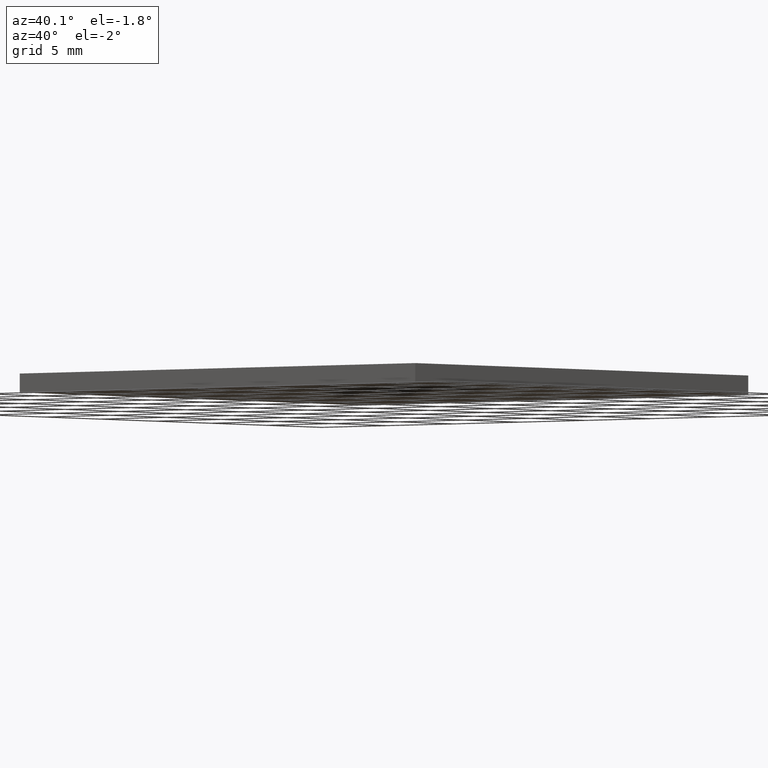
[diagram: clean part render]
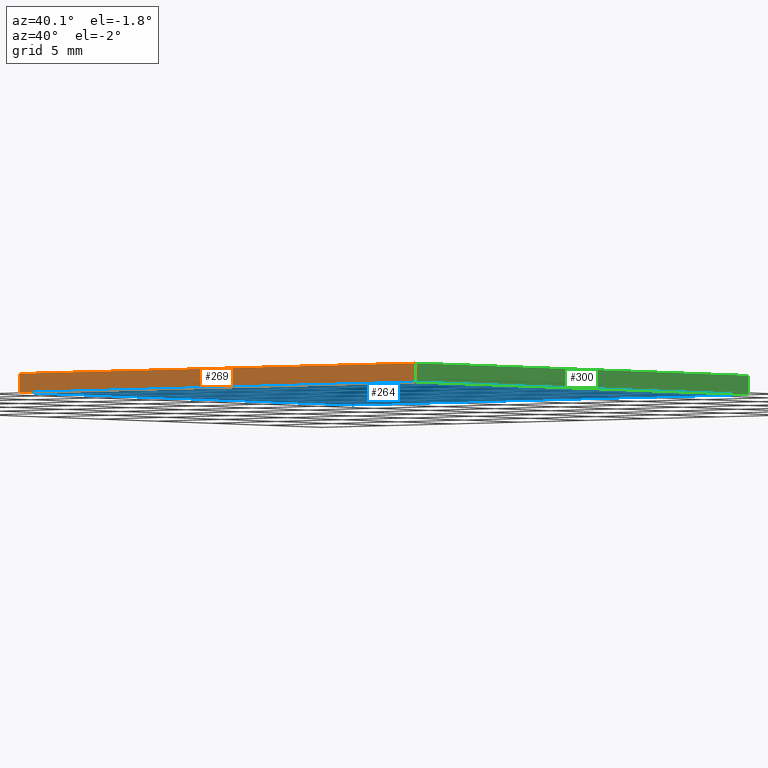
[diagram: same view with three faces highlighted in distinct colors, each labeled with its STEP entity id]
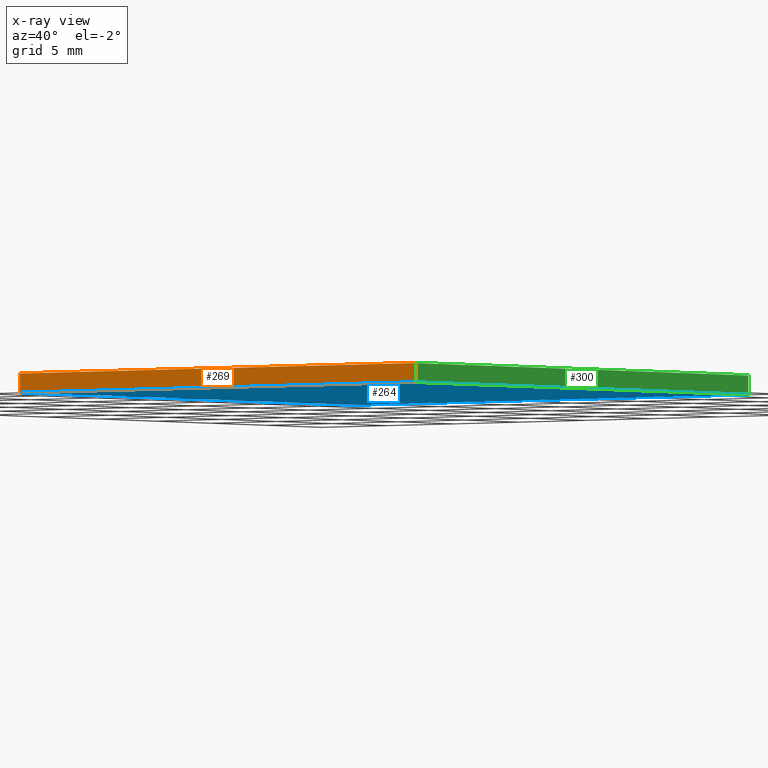
[diagram: x-ray of the same camera — body ghosted, the three highlighted faces saturated]
A machine part, auxiliary view with three faces highlighted in distinct colors.
The next image is the same camera in x-ray (body ghosted, the three faces saturated) — at least one of them is partly hidden behind the body in this view.
Their STEP definitions:

[orange] entity #269 — the highlighted planar face has unit normal (0, 1, 0).
#20 = VECTOR ( 'NONE', #48, 1000.000000000000000 ) ;
#26 = LINE ( 'NONE', #170, #261 ) ;
#43 = DIRECTION ( 'NONE',  ( 0.0000000000000000000, 1.000000000000000000, 0.0000000000000000000 ) ) ;
#48 = DIRECTION ( 'NONE',  ( 1.000000000000000000, 0.0000000000000000000, 0.0000000000000000000 ) ) ;
#50 = CARTESIAN_POINT ( 'NONE',  ( 15.00000000000000200, -14.99999999999999800, 1.100000000000000100 ) ) ;
#55 = AXIS2_PLACEMENT_3D ( 'NONE', #179, #43, #285 ) ;
#64 = ORIENTED_EDGE ( 'NONE', *, *, #255, .F. ) ;
#75 = DIRECTION ( 'NONE',  ( 1.000000000000000000, 0.0000000000000000000, 0.0000000000000000000 ) ) ;
#83 = LINE ( 'NONE', #203, #20 ) ;
#96 = PLANE ( 'NONE',  #55 ) ;
#97 = EDGE_CURVE ( 'NONE', #198, #248, #26, .T. ) ;
#100 = LINE ( 'NONE', #314, #145 ) ;
#104 = ORIENTED_EDGE ( 'NONE', *, *, #97, .T. ) ;
#112 = EDGE_CURVE ( 'NONE', #266, #156, #271, .T. ) ;
#113 = CARTESIAN_POINT ( 'NONE',  ( 15.00000000000000200, -14.99999999999999800, 0.0000000000000000000 ) ) ;
#114 = ORIENTED_EDGE ( 'NONE', *, *, #273, .T. ) ;
#145 = VECTOR ( 'NONE', #75, 1000.000000000000000 ) ;
#149 = ORIENTED_EDGE ( 'NONE', *, *, #112, .F. ) ;
#156 = VERTEX_POINT ( 'NONE', #113 ) ;
#166 = FACE_OUTER_BOUND ( 'NONE', #292, .T. ) ;
#170 = CARTESIAN_POINT ( 'NONE',  ( -14.99999999999999800, -14.99999999999999800, 1.100000000000000100 ) ) ;
#174 = DIRECTION ( 'NONE',  ( -0.0000000000000000000, -0.0000000000000000000, -1.000000000000000000 ) ) ;
#176 = CARTESIAN_POINT ( 'NONE',  ( -14.99999999999999800, -14.99999999999999800, 0.0000000000000000000 ) ) ;
#179 = CARTESIAN_POINT ( 'NONE',  ( -14.99999999999999800, -14.99999999999999800, 1.100000000000000100 ) ) ;
#198 = VERTEX_POINT ( 'NONE', #226 ) ;
#203 = CARTESIAN_POINT ( 'NONE',  ( -14.99999999999999800, -14.99999999999999800, 1.100000000000000100 ) ) ;
#226 = CARTESIAN_POINT ( 'NONE',  ( -14.99999999999999800, -14.99999999999999800, 1.100000000000000100 ) ) ;
#248 = VERTEX_POINT ( 'NONE', #176 ) ;
#249 = DIRECTION ( 'NONE',  ( -0.0000000000000000000, -0.0000000000000000000, -1.000000000000000000 ) ) ;
#255 = EDGE_CURVE ( 'NONE', #198, #266, #83, .T. ) ;
#261 = VECTOR ( 'NONE', #249, 1000.000000000000000 ) ;
#266 = VERTEX_POINT ( 'NONE', #50 ) ;
#269 = ADVANCED_FACE ( 'NONE', ( #166 ), #96, .F. ) ;
#271 = LINE ( 'NONE', #306, #282 ) ;
#273 = EDGE_CURVE ( 'NONE', #248, #156, #100, .T. ) ;
#282 = VECTOR ( 'NONE', #174, 1000.000000000000000 ) ;
#285 = DIRECTION ( 'NONE',  ( 0.0000000000000000000, -0.0000000000000000000, 1.000000000000000000 ) ) ;
#292 = EDGE_LOOP ( 'NONE', ( #114, #149, #64, #104 ) ) ;
#306 = CARTESIAN_POINT ( 'NONE',  ( 15.00000000000000200, -14.99999999999999800, 1.100000000000000100 ) ) ;
#314 = CARTESIAN_POINT ( 'NONE',  ( -14.99999999999999800, -14.99999999999999800, 0.0000000000000000000 ) ) ;

[blue] entity #264 — the highlighted planar face has unit normal (0, 0, -1).
#6 = EDGE_CURVE ( 'NONE', #9, #248, #234, .T. ) ;
#9 = VERTEX_POINT ( 'NONE', #169 ) ;
#10 = VECTOR ( 'NONE', #121, 1000.000000000000000 ) ;
#13 = LINE ( 'NONE', #133, #10 ) ;
#16 = CARTESIAN_POINT ( 'NONE',  ( 15.00000000000000200, 15.00000000000000200, 0.0000000000000000000 ) ) ;
#21 = DIRECTION ( 'NONE',  ( 0.0000000000000000000, 0.0000000000000000000, -1.000000000000000000 ) ) ;
#23 = CARTESIAN_POINT ( 'NONE',  ( 0.0000000000000000000, 0.0000000000000000000, 0.0000000000000000000 ) ) ;
#28 = ORIENTED_EDGE ( 'NONE', *, *, #273, .F. ) ;
#35 = FACE_OUTER_BOUND ( 'NONE', #242, .T. ) ;
#37 = VECTOR ( 'NONE', #67, 1000.000000000000000 ) ;
#45 = PLANE ( 'NONE',  #171 ) ;
#67 = DIRECTION ( 'NONE',  ( -0.0000000000000000000, -1.000000000000000000, -0.0000000000000000000 ) ) ;
#74 = VECTOR ( 'NONE', #272, 1000.000000000000000 ) ;
#75 = DIRECTION ( 'NONE',  ( 1.000000000000000000, 0.0000000000000000000, 0.0000000000000000000 ) ) ;
#100 = LINE ( 'NONE', #314, #145 ) ;
#105 = EDGE_CURVE ( 'NONE', #156, #184, #192, .T. ) ;
#113 = CARTESIAN_POINT ( 'NONE',  ( 15.00000000000000200, -14.99999999999999800, 0.0000000000000000000 ) ) ;
#121 = DIRECTION ( 'NONE',  ( -1.000000000000000000, -0.0000000000000000000, -0.0000000000000000000 ) ) ;
#133 = CARTESIAN_POINT ( 'NONE',  ( -14.99999999999999800, 15.00000000000000200, 0.0000000000000000000 ) ) ;
#145 = VECTOR ( 'NONE', #75, 1000.000000000000000 ) ;
#151 = ORIENTED_EDGE ( 'NONE', *, *, #209, .F. ) ;
#156 = VERTEX_POINT ( 'NONE', #113 ) ;
#159 = CARTESIAN_POINT ( 'NONE',  ( 15.00000000000000200, -14.99999999999999800, 0.0000000000000000000 ) ) ;
#162 = DIRECTION ( 'NONE',  ( -1.000000000000000000, 0.0000000000000000000, -0.0000000000000000000 ) ) ;
#169 = CARTESIAN_POINT ( 'NONE',  ( -14.99999999999999800, 15.00000000000000200, 0.0000000000000000000 ) ) ;
#171 = AXIS2_PLACEMENT_3D ( 'NONE', #23, #21, #162 ) ;
#176 = CARTESIAN_POINT ( 'NONE',  ( -14.99999999999999800, -14.99999999999999800, 0.0000000000000000000 ) ) ;
#184 = VERTEX_POINT ( 'NONE', #16 ) ;
#192 = LINE ( 'NONE', #159, #74 ) ;
#199 = CARTESIAN_POINT ( 'NONE',  ( -14.99999999999999800, -14.99999999999999800, 0.0000000000000000000 ) ) ;
#209 = EDGE_CURVE ( 'NONE', #184, #9, #13, .T. ) ;
#223 = ORIENTED_EDGE ( 'NONE', *, *, #105, .F. ) ;
#225 = ORIENTED_EDGE ( 'NONE', *, *, #6, .F. ) ;
#234 = LINE ( 'NONE', #199, #37 ) ;
#242 = EDGE_LOOP ( 'NONE', ( #223, #28, #225, #151 ) ) ;
#248 = VERTEX_POINT ( 'NONE', #176 ) ;
#264 = ADVANCED_FACE ( 'NONE', ( #35 ), #45, .T. ) ;
#272 = DIRECTION ( 'NONE',  ( 0.0000000000000000000, 1.000000000000000000, 0.0000000000000000000 ) ) ;
#273 = EDGE_CURVE ( 'NONE', #248, #156, #100, .T. ) ;
#314 = CARTESIAN_POINT ( 'NONE',  ( -14.99999999999999800, -14.99999999999999800, 0.0000000000000000000 ) ) ;

[green] entity #300 — the highlighted planar face has unit normal (-1, 0, 0).
#8 = VECTOR ( 'NONE', #204, 1000.000000000000000 ) ;
#15 = ORIENTED_EDGE ( 'NONE', *, *, #105, .T. ) ;
#16 = CARTESIAN_POINT ( 'NONE',  ( 15.00000000000000200, 15.00000000000000200, 0.0000000000000000000 ) ) ;
#38 = EDGE_CURVE ( 'NONE', #266, #188, #254, .T. ) ;
#42 = CARTESIAN_POINT ( 'NONE',  ( 15.00000000000000200, 15.00000000000000200, 1.100000000000000100 ) ) ;
#50 = CARTESIAN_POINT ( 'NONE',  ( 15.00000000000000200, -14.99999999999999800, 1.100000000000000100 ) ) ;
#51 = CARTESIAN_POINT ( 'NONE',  ( 15.00000000000000200, 15.00000000000000200, 1.100000000000000100 ) ) ;
#74 = VECTOR ( 'NONE', #272, 1000.000000000000000 ) ;
#79 = ORIENTED_EDGE ( 'NONE', *, *, #38, .F. ) ;
#89 = EDGE_LOOP ( 'NONE', ( #15, #235, #79, #298 ) ) ;
#91 = PLANE ( 'NONE',  #210 ) ;
#105 = EDGE_CURVE ( 'NONE', #156, #184, #192, .T. ) ;
#108 = LINE ( 'NONE', #51, #8 ) ;
#112 = EDGE_CURVE ( 'NONE', #266, #156, #271, .T. ) ;
#113 = CARTESIAN_POINT ( 'NONE',  ( 15.00000000000000200, -14.99999999999999800, 0.0000000000000000000 ) ) ;
#117 = DIRECTION ( 'NONE',  ( -1.000000000000000000, 0.0000000000000000000, 0.0000000000000000000 ) ) ;
#137 = DIRECTION ( 'NONE',  ( 0.0000000000000000000, 1.000000000000000000, 0.0000000000000000000 ) ) ;
#156 = VERTEX_POINT ( 'NONE', #113 ) ;
#159 = CARTESIAN_POINT ( 'NONE',  ( 15.00000000000000200, -14.99999999999999800, 0.0000000000000000000 ) ) ;
#174 = DIRECTION ( 'NONE',  ( -0.0000000000000000000, -0.0000000000000000000, -1.000000000000000000 ) ) ;
#184 = VERTEX_POINT ( 'NONE', #16 ) ;
#188 = VERTEX_POINT ( 'NONE', #42 ) ;
#192 = LINE ( 'NONE', #159, #74 ) ;
#204 = DIRECTION ( 'NONE',  ( -0.0000000000000000000, -0.0000000000000000000, -1.000000000000000000 ) ) ;
#206 = FACE_OUTER_BOUND ( 'NONE', #89, .T. ) ;
#210 = AXIS2_PLACEMENT_3D ( 'NONE', #253, #117, #280 ) ;
#214 = VECTOR ( 'NONE', #137, 1000.000000000000000 ) ;
#235 = ORIENTED_EDGE ( 'NONE', *, *, #283, .F. ) ;
#253 = CARTESIAN_POINT ( 'NONE',  ( 15.00000000000000200, -14.99999999999999800, 1.100000000000000100 ) ) ;
#254 = LINE ( 'NONE', #307, #214 ) ;
#266 = VERTEX_POINT ( 'NONE', #50 ) ;
#271 = LINE ( 'NONE', #306, #282 ) ;
#272 = DIRECTION ( 'NONE',  ( 0.0000000000000000000, 1.000000000000000000, 0.0000000000000000000 ) ) ;
#280 = DIRECTION ( 'NONE',  ( 0.0000000000000000000, 0.0000000000000000000, 1.000000000000000000 ) ) ;
#282 = VECTOR ( 'NONE', #174, 1000.000000000000000 ) ;
#283 = EDGE_CURVE ( 'NONE', #188, #184, #108, .T. ) ;
#298 = ORIENTED_EDGE ( 'NONE', *, *, #112, .T. ) ;
#300 = ADVANCED_FACE ( 'NONE', ( #206 ), #91, .F. ) ;
#306 = CARTESIAN_POINT ( 'NONE',  ( 15.00000000000000200, -14.99999999999999800, 1.100000000000000100 ) ) ;
#307 = CARTESIAN_POINT ( 'NONE',  ( 15.00000000000000200, -14.99999999999999800, 1.100000000000000100 ) ) ;